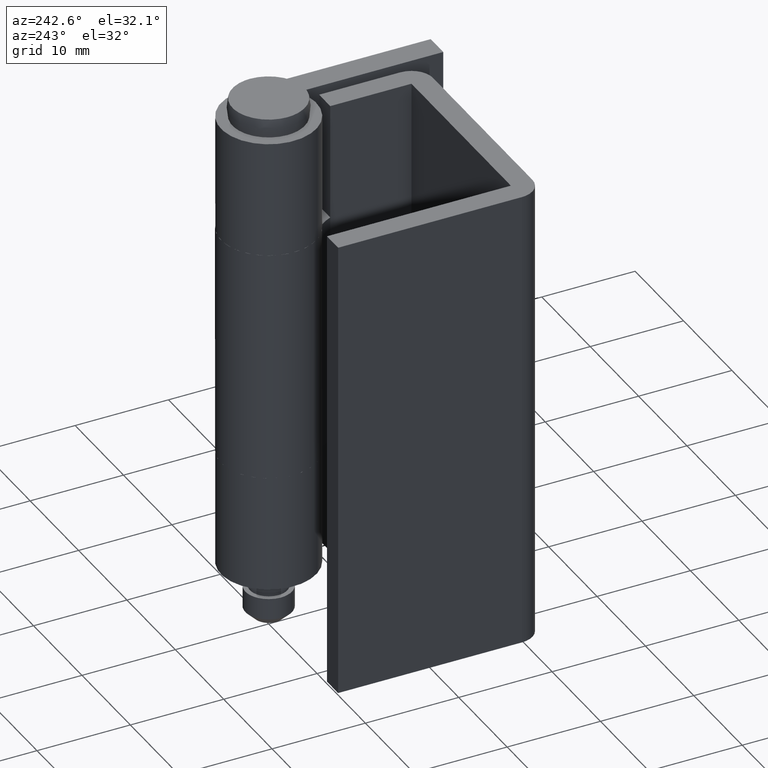
[diagram: clean part render]
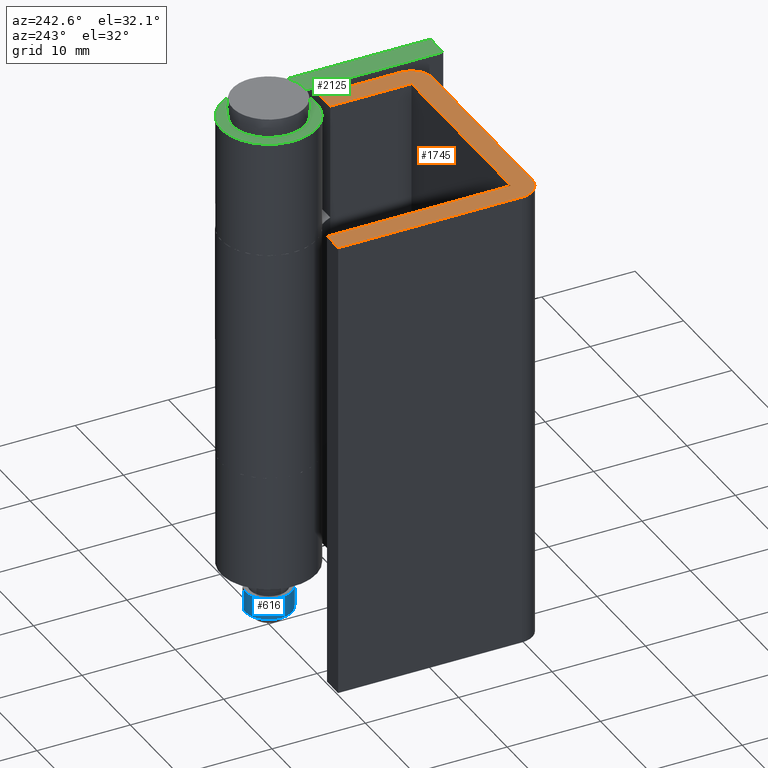
[diagram: same view with three faces highlighted in distinct colors, each labeled with its STEP entity id]
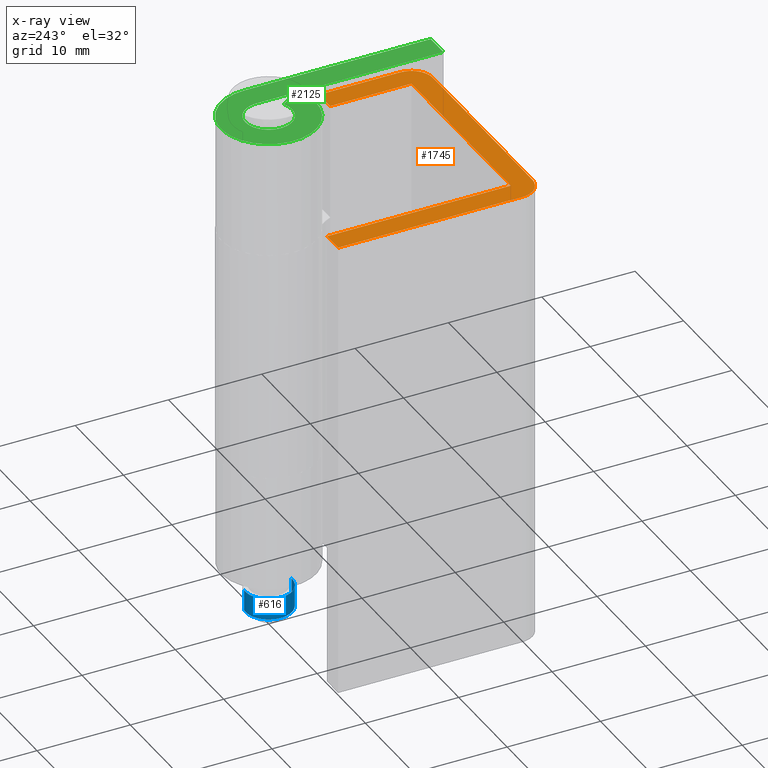
[diagram: x-ray of the same camera — body ghosted, the three highlighted faces saturated]
A machine part, auxiliary view with three faces highlighted in distinct colors.
The next image is the same camera in x-ray (body ghosted, the three faces saturated) — at least one of them is partly hidden behind the body in this view.
Their STEP definitions:

[orange] entity #1745 — the highlighted face is a freeform B-spline surface patch.
#981=CARTESIAN_POINT('',(-1.150009000000000,-6.0,56.0));
#982=VERTEX_POINT('',#981);
#983=CARTESIAN_POINT('',(1.149994000000000,-6.0,56.0));
#984=VERTEX_POINT('',#983);
#985=CARTESIAN_POINT('',(-1.150009000000000,-6.0,56.0));
#986=CARTESIAN_POINT('',(1.149994000000000,-6.0,56.0));
#987=QUASI_UNIFORM_CURVE('',1,(#985,#986),.UNSPECIFIED.,.F.,.U.);
#988=EDGE_CURVE('',#982,#984,#987,.T.);
#1274=CARTESIAN_POINT('',(-24.000004000000100,-14.700000799287141,56.0));
#1275=VERTEX_POINT('',#1274);
#1281=CARTESIAN_POINT('',(-24.000008000000001,5.0,56.0));
#1282=VERTEX_POINT('',#1281);
#1283=CARTESIAN_POINT('',(-24.000004000000100,-14.700000799287141,56.0));
#1284=CARTESIAN_POINT('',(-24.000008000000001,5.0,56.0));
#1285=QUASI_UNIFORM_CURVE('',1,(#1283,#1284),.UNSPECIFIED.,.F.,.U.);
#1286=EDGE_CURVE('',#1275,#1282,#1285,.T.);
#1327=CARTESIAN_POINT('',(-21.700004000000099,-17.0,56.0));
#1328=VERTEX_POINT('',#1327);
#1334=CARTESIAN_POINT('',(-21.700004000000099,-17.0,56.0));
#1335=CARTESIAN_POINT('',(-22.652695252245657,-17.000000207106776,55.999999999999993));
#1336=CARTESIAN_POINT('',(-23.326349667691879,-16.326346025766352,56.0));
#1337=CARTESIAN_POINT('',(-24.000004083138091,-15.652691844425911,55.999999999999993));
#1338=CARTESIAN_POINT('',(-24.000004000000100,-14.700000799287141,56.0));
#1346=(BOUNDED_CURVE()B_SPLINE_CURVE(2,(#1334,#1335,#1336,#1337,#1338),.UNSPECIFIED.,.F.,.U.)B_SPLINE_CURVE_WITH_KNOTS((3,2,3),(0.0,0.500000000000000,1.0),.UNSPECIFIED.)CURVE()GEOMETRIC_REPRESENTATION_ITEM()RATIONAL_B_SPLINE_CURVE((1.0,0.923879524162429,1.0,0.923879524162429,1.0))REPRESENTATION_ITEM(''));
#1347=EDGE_CURVE('',#1328,#1275,#1346,.T.);
#1365=CARTESIAN_POINT('',(-1.150009000000000,-17.000001000000001,56.0));
#1366=VERTEX_POINT('',#1365);
#1372=CARTESIAN_POINT('',(-1.150009000000000,-17.000001000000001,56.0));
#1373=CARTESIAN_POINT('',(-21.700004000000099,-17.0,56.0));
#1374=QUASI_UNIFORM_CURVE('',1,(#1372,#1373),.UNSPECIFIED.,.F.,.U.);
#1375=EDGE_CURVE('',#1366,#1328,#1374,.T.);
#1410=CARTESIAN_POINT('',(1.149994000000000,-14.700001000000000,56.0));
#1411=VERTEX_POINT('',#1410);
#1417=CARTESIAN_POINT('',(1.149994000000000,-14.700001000000000,56.0));
#1418=CARTESIAN_POINT('',(1.149992500000000,-17.000001000000001,55.999999999999986));
#1419=CARTESIAN_POINT('',(-1.150009000000000,-17.000001000000001,56.0));
#1427=(BOUNDED_CURVE()B_SPLINE_CURVE(2,(#1417,#1418,#1419),.UNSPECIFIED.,.F.,.U.)CURVE()GEOMETRIC_REPRESENTATION_ITEM()QUASI_UNIFORM_CURVE()RATIONAL_B_SPLINE_CURVE((1.0,0.707106781186547,1.0))REPRESENTATION_ITEM(''));
#1428=EDGE_CURVE('',#1411,#1366,#1427,.T.);
#1451=CARTESIAN_POINT('',(1.149994000000000,-6.0,56.0));
#1452=CARTESIAN_POINT('',(1.149994000000000,-14.700001000000000,56.0));
#1453=QUASI_UNIFORM_CURVE('',1,(#1451,#1452),.UNSPECIFIED.,.F.,.U.);
#1454=EDGE_CURVE('',#984,#1411,#1453,.T.);
#1472=CARTESIAN_POINT('',(-1.150009000000000,-14.700001000000000,56.0));
#1473=VERTEX_POINT('',#1472);
#1479=CARTESIAN_POINT('',(-1.150009000000000,-14.700001000000000,56.0));
#1480=CARTESIAN_POINT('',(-1.150009000000000,-6.0,56.0));
#1481=QUASI_UNIFORM_CURVE('',1,(#1479,#1480),.UNSPECIFIED.,.F.,.U.);
#1482=EDGE_CURVE('',#1473,#982,#1481,.T.);
#1506=CARTESIAN_POINT('',(-21.700004000000099,-14.700001000000000,56.0));
#1507=VERTEX_POINT('',#1506);
#1513=CARTESIAN_POINT('',(-21.700004000000099,-14.700001000000000,56.0));
#1514=CARTESIAN_POINT('',(-1.150009000000000,-14.700001000000000,56.0));
#1515=QUASI_UNIFORM_CURVE('',1,(#1513,#1514),.UNSPECIFIED.,.F.,.U.);
#1516=EDGE_CURVE('',#1507,#1473,#1515,.T.);
#1534=CARTESIAN_POINT('',(-21.700004000000099,5.0,56.0));
#1535=VERTEX_POINT('',#1534);
#1541=CARTESIAN_POINT('',(-21.700004000000099,5.0,56.0));
#1542=CARTESIAN_POINT('',(-21.700004000000099,-14.700001000000000,56.0));
#1543=QUASI_UNIFORM_CURVE('',1,(#1541,#1542),.UNSPECIFIED.,.F.,.U.);
#1544=EDGE_CURVE('',#1535,#1507,#1543,.T.);
#1561=CARTESIAN_POINT('',(-24.000008000000001,5.0,56.0));
#1562=CARTESIAN_POINT('',(-21.700004000000099,5.0,56.0));
#1563=QUASI_UNIFORM_CURVE('',1,(#1561,#1562),.UNSPECIFIED.,.F.,.U.);
#1564=EDGE_CURVE('',#1282,#1535,#1563,.T.);
#1728=CARTESIAN_POINT('',(-25.256250315064189,-18.098902039911071,56.0));
#1729=CARTESIAN_POINT('',(2.406237214498352,-18.098902039911071,56.0));
#1730=CARTESIAN_POINT('',(-25.256250315064189,6.098900646520399,56.0));
#1731=CARTESIAN_POINT('',(2.406237214498352,6.098900646520399,56.0));
#1732=B_SPLINE_SURFACE_WITH_KNOTS('',1,1,((#1728,#1730),(#1729,#1731)),.UNSPECIFIED.,.F.,.F.,.U.,(2,2),(2,2),(0.0,27.662487529562540),(0.0,24.197802686431469),.UNSPECIFIED.);
#1733=ORIENTED_EDGE('',*,*,#988,.F.);
#1734=ORIENTED_EDGE('',*,*,#1482,.F.);
#1735=ORIENTED_EDGE('',*,*,#1516,.F.);
#1736=ORIENTED_EDGE('',*,*,#1544,.F.);
#1737=ORIENTED_EDGE('',*,*,#1564,.F.);
#1738=ORIENTED_EDGE('',*,*,#1286,.F.);
#1739=ORIENTED_EDGE('',*,*,#1347,.F.);
#1740=ORIENTED_EDGE('',*,*,#1375,.F.);
#1741=ORIENTED_EDGE('',*,*,#1428,.F.);
#1742=ORIENTED_EDGE('',*,*,#1454,.F.);
#1743=EDGE_LOOP('',(#1733,#1734,#1735,#1736,#1737,#1738,#1739,#1740,#1741,#1742));
#1744=FACE_OUTER_BOUND('',#1743,.T.);
#1745=ADVANCED_FACE('',(#1744),#1732,.T.);

[blue] entity #616 — the highlighted face is a freeform B-spline surface patch.
#434=CARTESIAN_POINT('',(0.285251661890313,2.483672983584758,1.000000000000000));
#435=VERTEX_POINT('',#434);
#451=CARTESIAN_POINT('',(0.285251661929631,2.483672983580242,3.299999999980200));
#452=VERTEX_POINT('',#451);
#453=CARTESIAN_POINT('',(0.285251661929631,2.483672983580242,3.299999999980200));
#454=CARTESIAN_POINT('',(0.285251661890313,2.483672983584758,1.000000000000000));
#455=QUASI_UNIFORM_CURVE('',1,(#453,#454),.UNSPECIFIED.,.F.,.U.);
#456=EDGE_CURVE('',#452,#435,#455,.T.);
#473=CARTESIAN_POINT('',(0.152621348854256,-2.495336996053620,3.299999999980200));
#474=VERTEX_POINT('',#473);
#488=CARTESIAN_POINT('',(0.152621136919996,-2.495337009016057,1.000000000000373));
#489=VERTEX_POINT('',#488);
#490=CARTESIAN_POINT('',(0.152621348854256,-2.495336996053620,3.299999999980200));
#491=CARTESIAN_POINT('',(0.152621136919996,-2.495337009016057,1.000000000000373));
#492=QUASI_UNIFORM_CURVE('',1,(#490,#491),.UNSPECIFIED.,.F.,.U.);
#493=EDGE_CURVE('',#474,#489,#492,.T.);
#511=CARTESIAN_POINT('',(0.152621348837143,-2.495336996054667,3.357499999979705));
#512=CARTESIAN_POINT('',(-2.342715647217524,-2.647958344891809,3.357499999979705));
#513=CARTESIAN_POINT('',(-2.495336996054667,-0.152621348837143,3.357499999979705));
#514=CARTESIAN_POINT('',(-2.647958344891809,2.342715647217524,3.357499999979705));
#515=CARTESIAN_POINT('',(-0.152621348837143,2.495336996054667,3.357499999979705));
#516=CARTESIAN_POINT('',(0.066828045241367,2.508759095986944,3.357499999979705));
#517=CARTESIAN_POINT('',(0.285251661850901,2.483672983589284,3.357499999979706));
#518=CARTESIAN_POINT('',(0.152621348837143,-2.495336996054667,0.941062500000508));
#519=CARTESIAN_POINT('',(-2.342715647217524,-2.647958344891809,0.941062500000508));
#520=CARTESIAN_POINT('',(-2.495336996054667,-0.152621348837143,0.941062500000508));
#521=CARTESIAN_POINT('',(-2.647958344891809,2.342715647217524,0.941062500000508));
#522=CARTESIAN_POINT('',(-0.152621348837143,2.495336996054667,0.941062500000508));
#523=CARTESIAN_POINT('',(0.066828045241367,2.508759095986944,0.941062500000508));
#524=CARTESIAN_POINT('',(0.285251661850901,2.483672983589284,0.941062500000508));
#532=(BOUNDED_SURFACE()B_SPLINE_SURFACE(2,1,((#511,#518),(#512,#519),(#513,#520),(#514,#521),(#515,#522),(#516,#523),(#517,#524)),.UNSPECIFIED.,.F.,.F.,.U.)B_SPLINE_SURFACE_WITH_KNOTS((3,2,2,3),(2,2),(0.0,4.142135623730949,8.284271247461899,8.781327522309613),(0.0,2.416437499979197),.UNSPECIFIED.)GEOMETRIC_REPRESENTATION_ITEM()RATIONAL_B_SPLINE_SURFACE(((1.0,1.0),(0.707106781186548,0.707106781186548),(1.0,1.0),(0.707106781186548,0.707106781186548),(1.0,1.0),(0.964852813742386,0.964852813742386),(0.938140952186599,0.938140952186599)))REPRESENTATION_ITEM('')SURFACE());
#533=CARTESIAN_POINT('',(-0.196147739807219,2.492293334358092,1.000000000063452));
#534=VERTEX_POINT('',#533);
#535=CARTESIAN_POINT('',(-0.196147739807219,2.492293334358092,1.000000000063452));
#536=CARTESIAN_POINT('',(-0.098225268004041,2.500000000000000,1.0));
#537=CARTESIAN_POINT('',(0.0,2.500000000000000,1.0));
#538=CARTESIAN_POINT('',(0.143093087603032,2.500000000000000,1.0));
#539=CARTESIAN_POINT('',(0.285251661890313,2.483672983584758,1.000000000000000));
#547=(BOUNDED_CURVE()B_SPLINE_CURVE(2,(#535,#536,#537,#538,#539),.UNSPECIFIED.,.F.,.U.)B_SPLINE_CURVE_WITH_KNOTS((3,2,3),(0.236331300566375,0.250000000000000,0.269767755881980),.UNSPECIFIED.)CURVE()GEOMETRIC_REPRESENTATION_ITEM()RATIONAL_B_SPLINE_CURVE((0.969723356033261,0.983986122503568,1.0,0.976840633404033,0.957343736450069))REPRESENTATION_ITEM(''));
#548=EDGE_CURVE('',#534,#435,#547,.T.);
#549=ORIENTED_EDGE('',*,*,#548,.F.);
#550=CARTESIAN_POINT('',(-2.500000000000000,0.0,1.0));
#551=VERTEX_POINT('',#550);
#552=CARTESIAN_POINT('',(-2.500000000000000,0.0,1.0));
#553=CARTESIAN_POINT('',(-2.500000000000000,2.310976228247719,1.0));
#554=CARTESIAN_POINT('',(-0.196147739807218,2.492293334358092,1.000000000063452));
#562=(BOUNDED_CURVE()B_SPLINE_CURVE(2,(#552,#553,#554),.UNSPECIFIED.,.F.,.U.)B_SPLINE_CURVE_WITH_KNOTS((3,3),(0.0,0.236331300566375),.UNSPECIFIED.)CURVE()GEOMETRIC_REPRESENTATION_ITEM()RATIONAL_B_SPLINE_CURVE((1.0,0.723120658682980,0.969723356033260))REPRESENTATION_ITEM(''));
#563=EDGE_CURVE('',#551,#534,#562,.T.);
#564=ORIENTED_EDGE('',*,*,#563,.F.);
#565=CARTESIAN_POINT('',(0.152621136919996,-2.495337009016058,1.000000000000373));
#566=CARTESIAN_POINT('',(0.076381801990802,-2.500000000000000,1.0));
#567=CARTESIAN_POINT('',(0.0,-2.500000000000000,1.0));
#568=CARTESIAN_POINT('',(-2.500000000000000,-2.500000000000000,1.0));
#569=CARTESIAN_POINT('',(-2.500000000000000,0.0,1.0));
#577=(BOUNDED_CURVE()B_SPLINE_CURVE(2,(#565,#566,#567,#568,#569),.UNSPECIFIED.,.F.,.U.)B_SPLINE_CURVE_WITH_KNOTS((3,2,3),(0.739332976895550,0.750000000000000,1.0),.UNSPECIFIED.)CURVE()GEOMETRIC_REPRESENTATION_ITEM()RATIONAL_B_SPLINE_CURVE((0.976072073078618,0.987502805071120,1.0,0.707106781186548,1.0))REPRESENTATION_ITEM(''));
#578=EDGE_CURVE('',#489,#551,#577,.T.);
#579=ORIENTED_EDGE('',*,*,#578,.F.);
#580=ORIENTED_EDGE('',*,*,#493,.F.);
#581=CARTESIAN_POINT('',(-2.500000000000000,0.0,3.299999999980200));
#582=VERTEX_POINT('',#581);
#583=CARTESIAN_POINT('',(0.152621348854256,-2.495336996053620,3.299999999980200));
#584=CARTESIAN_POINT('',(0.076381908263634,-2.500000000000000,3.299999999980200));
#585=CARTESIAN_POINT('',(0.0,-2.500000000000000,3.299999999980200));
#586=CARTESIAN_POINT('',(-2.500000000000000,-2.500000000000000,3.299999999980199));
#587=CARTESIAN_POINT('',(-2.500000000000000,0.0,3.299999999980200));
#595=(BOUNDED_CURVE()B_SPLINE_CURVE(2,(#583,#584,#585,#586,#587),.UNSPECIFIED.,.F.,.U.)B_SPLINE_CURVE_WITH_KNOTS((3,2,3),(0.739332962239602,0.750000000000000,1.0),.UNSPECIFIED.)CURVE()GEOMETRIC_REPRESENTATION_ITEM()RATIONAL_B_SPLINE_CURVE((0.976072041668129,0.987502787900609,1.0,0.707106781186548,1.0))REPRESENTATION_ITEM(''));
#596=EDGE_CURVE('',#474,#582,#595,.T.);
#597=ORIENTED_EDGE('',*,*,#596,.T.);
#598=CARTESIAN_POINT('',(-2.500000000000000,0.0,3.299999999980200));
#599=CARTESIAN_POINT('',(-2.500000000000000,2.500000000000000,3.299999999980199));
#600=CARTESIAN_POINT('',(0.0,2.500000000000000,3.299999999980200));
#601=CARTESIAN_POINT('',(0.143093087642739,2.500000000000000,3.299999999980199));
#602=CARTESIAN_POINT('',(0.285251661929631,2.483672983580242,3.299999999980200));
#610=(BOUNDED_CURVE()B_SPLINE_CURVE(2,(#598,#599,#600,#601,#602),.UNSPECIFIED.,.F.,.U.)B_SPLINE_CURVE_WITH_KNOTS((3,2,3),(0.0,0.250000000000000,0.269767755887338),.UNSPECIFIED.)CURVE()GEOMETRIC_REPRESENTATION_ITEM()RATIONAL_B_SPLINE_CURVE((1.0,0.707106781186548,1.0,0.976840633397755,0.957343736439499))REPRESENTATION_ITEM(''));
#611=EDGE_CURVE('',#582,#452,#610,.T.);
#612=ORIENTED_EDGE('',*,*,#611,.T.);
#613=ORIENTED_EDGE('',*,*,#456,.T.);
#614=EDGE_LOOP('',(#549,#564,#579,#580,#597,#612,#613));
#615=FACE_OUTER_BOUND('',#614,.T.);
#616=ADVANCED_FACE('',(#615),#532,.T.);

[green] entity #2125 — the highlighted face is a freeform B-spline surface patch.
#2048=CARTESIAN_POINT('',(-5.608945719746615,-21.253736663530528,56.0));
#2049=CARTESIAN_POINT('',(5.609454168928349,-21.253736663530528,56.0));
#2050=CARTESIAN_POINT('',(-5.608945719746615,6.353571414415792,56.0));
#2051=CARTESIAN_POINT('',(5.609454168928349,6.353571414415792,56.0));
#2052=B_SPLINE_SURFACE_WITH_KNOTS('',1,1,((#2048,#2050),(#2049,#2051)),.UNSPECIFIED.,.F.,.F.,.U.,(2,2),(2,2),(0.0,11.218399888674959),(0.0,27.607308077946321),.UNSPECIFIED.);
#2053=CARTESIAN_POINT('',(5.099991000000000,-0.009581227431491,56.0));
#2054=VERTEX_POINT('',#2053);
#2055=CARTESIAN_POINT('',(5.099991000000000,-20.0,56.0));
#2056=VERTEX_POINT('',#2055);
#2057=CARTESIAN_POINT('',(5.099991000000000,-0.009581227431491,56.0));
#2058=CARTESIAN_POINT('',(5.099991000000000,-20.0,56.0));
#2059=QUASI_UNIFORM_CURVE('',1,(#2057,#2058),.UNSPECIFIED.,.F.,.U.);
#2060=EDGE_CURVE('',#2054,#2056,#2059,.T.);
#2061=ORIENTED_EDGE('',*,*,#2060,.F.);
#2062=CARTESIAN_POINT('',(2.450000000000000,-4.472974401894105,56.0));
#2063=VERTEX_POINT('',#2062);
#2064=CARTESIAN_POINT('',(2.450000000000002,-4.472974401894112,56.0));
#2065=CARTESIAN_POINT('',(-0.963954268387881,-6.342913106217671,56.0));
#2066=CARTESIAN_POINT('',(-3.668240127154175,-3.543164457026505,56.0));
#2067=CARTESIAN_POINT('',(-6.372525985920472,-0.743415807835336,56.0));
#2068=CARTESIAN_POINT('',(-4.385323327017075,2.603639628965556,56.0));
#2069=CARTESIAN_POINT('',(-2.398120668113679,5.950695065766446,56.0));
#2070=CARTESIAN_POINT('',(1.354591555332763,4.916816217657639,56.0));
#2071=CARTESIAN_POINT('',(5.107303778779203,3.882937369548833,56.0));
#2072=CARTESIAN_POINT('',(5.099990999999991,-0.009581227431489,56.0));
#2080=(BOUNDED_CURVE()B_SPLINE_CURVE(2,(#2064,#2065,#2066,#2067,#2068,#2069,#2070,#2071,#2072),.UNSPECIFIED.,.F.,.U.)B_SPLINE_CURVE_WITH_KNOTS((3,2,2,2,3),(0.0,0.250000000000000,0.500000000000000,0.750000000000000,1.0),.UNSPECIFIED.)CURVE()GEOMETRIC_REPRESENTATION_ITEM()RATIONAL_B_SPLINE_CURVE((1.0,0.794919658025487,1.0,0.794919658025487,1.0,0.794919658025487,1.0,0.794919658025487,1.0))REPRESENTATION_ITEM(''));
#2081=EDGE_CURVE('',#2063,#2054,#2080,.T.);
#2082=ORIENTED_EDGE('',*,*,#2081,.F.);
#2083=CARTESIAN_POINT('',(1.200980392156862,-2.192634510732410,56.0));
#2084=VERTEX_POINT('',#2083);
#2085=CARTESIAN_POINT('',(1.200980392156862,-2.192634510732410,56.0));
#2086=CARTESIAN_POINT('',(2.450000000000000,-4.472974401894105,56.0));
#2087=QUASI_UNIFORM_CURVE('',1,(#2085,#2086),.UNSPECIFIED.,.F.,.U.);
#2088=EDGE_CURVE('',#2084,#2063,#2087,.T.);
#2089=ORIENTED_EDGE('',*,*,#2088,.F.);
#2090=CARTESIAN_POINT('',(2.500000000000000,0.0,56.0));
#2091=VERTEX_POINT('',#2090);
#2092=CARTESIAN_POINT('',(1.200980392156862,-2.192634510732409,56.0));
#2093=CARTESIAN_POINT('',(-0.471711891888070,-3.108824886017078,56.0));
#2094=CARTESIAN_POINT('',(-1.797340985611098,-1.737689667760768,56.0));
#2095=CARTESIAN_POINT('',(-3.122970079334126,-0.366554449504459,56.0));
#2096=CARTESIAN_POINT('',(-2.150866218572433,1.274274110936859,56.0));
#2097=CARTESIAN_POINT('',(-1.178762357810741,2.915102671378176,56.0));
#2098=CARTESIAN_POINT('',(0.660618821094630,2.411137236495580,56.0));
#2099=CARTESIAN_POINT('',(2.500000000000000,1.907171801612983,56.0));
#2100=CARTESIAN_POINT('',(2.500000000000000,0.0,56.0));
#2108=(BOUNDED_CURVE()B_SPLINE_CURVE(2,(#2092,#2093,#2094,#2095,#2096,#2097,#2098,#2099,#2100),.UNSPECIFIED.,.F.,.U.)B_SPLINE_CURVE_WITH_KNOTS((3,2,2,2,3),(0.0,0.250000000000000,0.500000000000000,0.750000000000000,1.0),.UNSPECIFIED.)CURVE()GEOMETRIC_REPRESENTATION_ITEM()RATIONAL_B_SPLINE_CURVE((1.0,0.795062113434495,1.0,0.795062113434495,1.0,0.795062113434495,1.0,0.795062113434495,1.0))REPRESENTATION_ITEM(''));
#2109=EDGE_CURVE('',#2084,#2091,#2108,.T.);
#2110=ORIENTED_EDGE('',*,*,#2109,.T.);
#2111=CARTESIAN_POINT('',(2.500000000000000,-20.0,56.0));
#2112=VERTEX_POINT('',#2111);
#2113=CARTESIAN_POINT('',(2.500000000000000,-20.0,56.0));
#2114=CARTESIAN_POINT('',(2.500000000000000,0.0,56.0));
#2115=QUASI_UNIFORM_CURVE('',1,(#2113,#2114),.UNSPECIFIED.,.F.,.U.);
#2116=EDGE_CURVE('',#2112,#2091,#2115,.T.);
#2117=ORIENTED_EDGE('',*,*,#2116,.F.);
#2118=CARTESIAN_POINT('',(5.099991000000000,-20.0,56.0));
#2119=CARTESIAN_POINT('',(2.500000000000000,-20.0,56.0));
#2120=QUASI_UNIFORM_CURVE('',1,(#2118,#2119),.UNSPECIFIED.,.F.,.U.);
#2121=EDGE_CURVE('',#2056,#2112,#2120,.T.);
#2122=ORIENTED_EDGE('',*,*,#2121,.F.);
#2123=EDGE_LOOP('',(#2061,#2082,#2089,#2110,#2117,#2122));
#2124=FACE_OUTER_BOUND('',#2123,.T.);
#2125=ADVANCED_FACE('',(#2124),#2052,.T.);